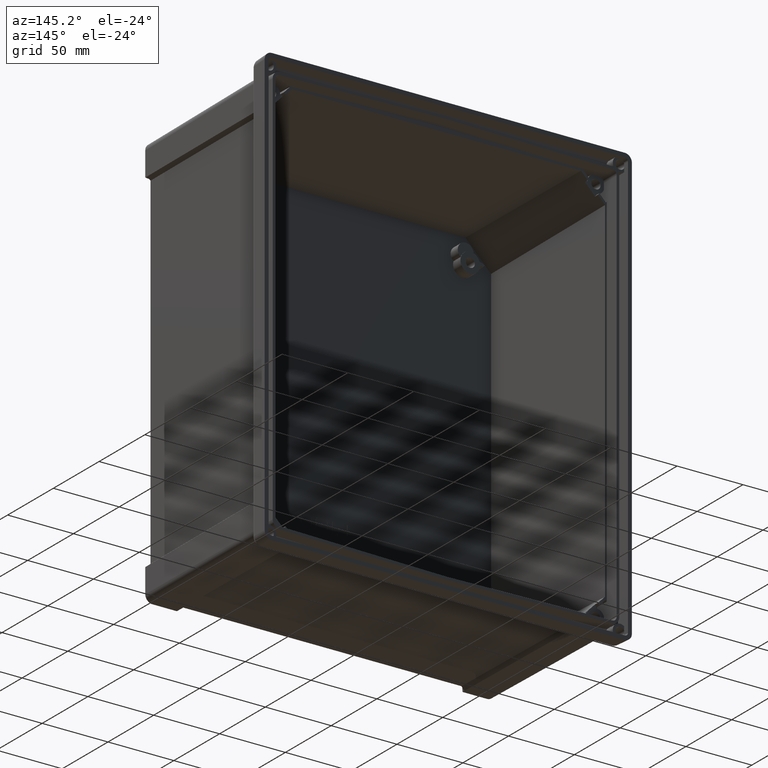
[diagram: clean part render]
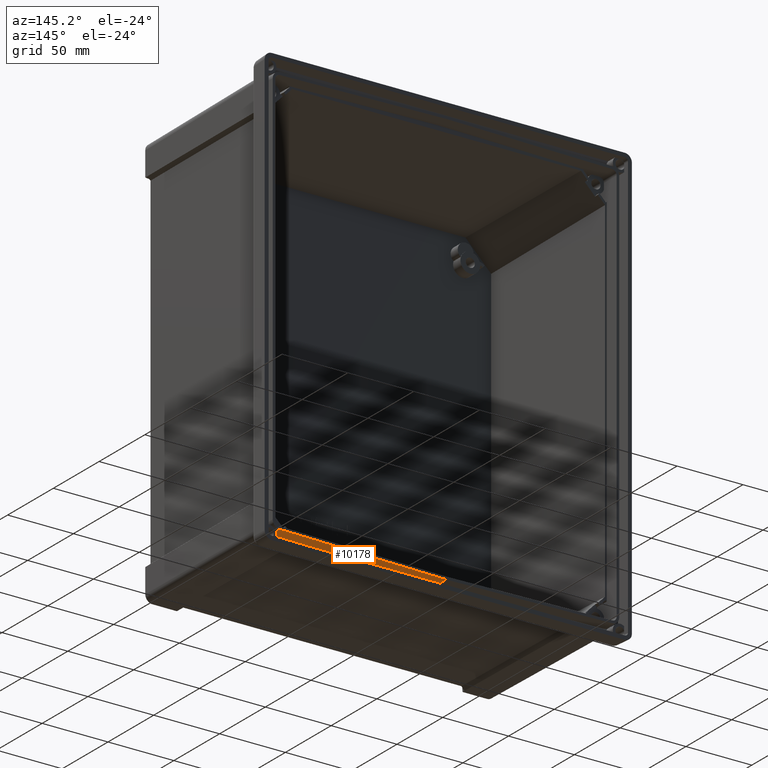
[diagram: same view with one face highlighted and labeled with its STEP entity id]
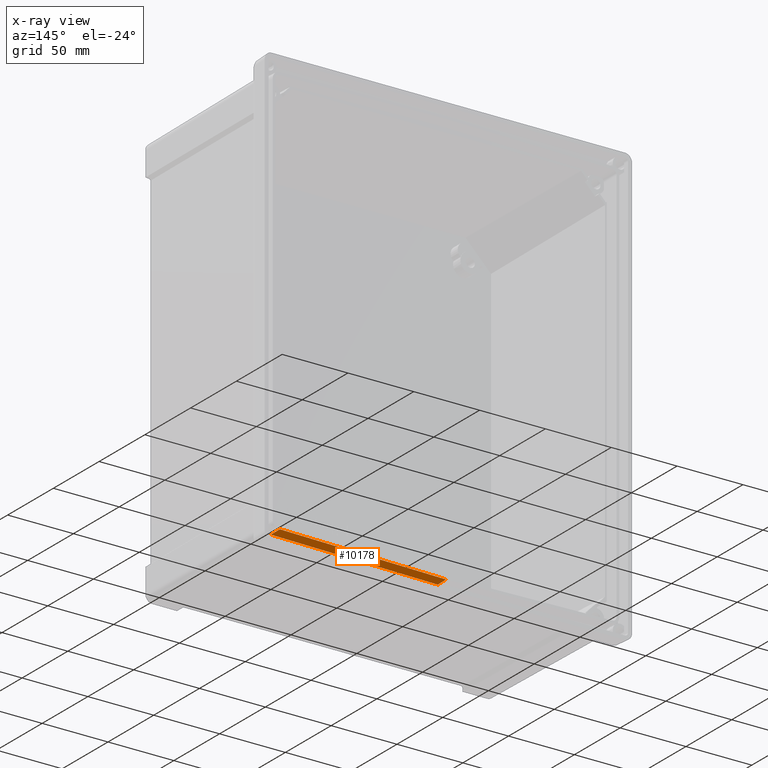
[diagram: x-ray of the same camera — body ghosted, the highlighted face saturated]
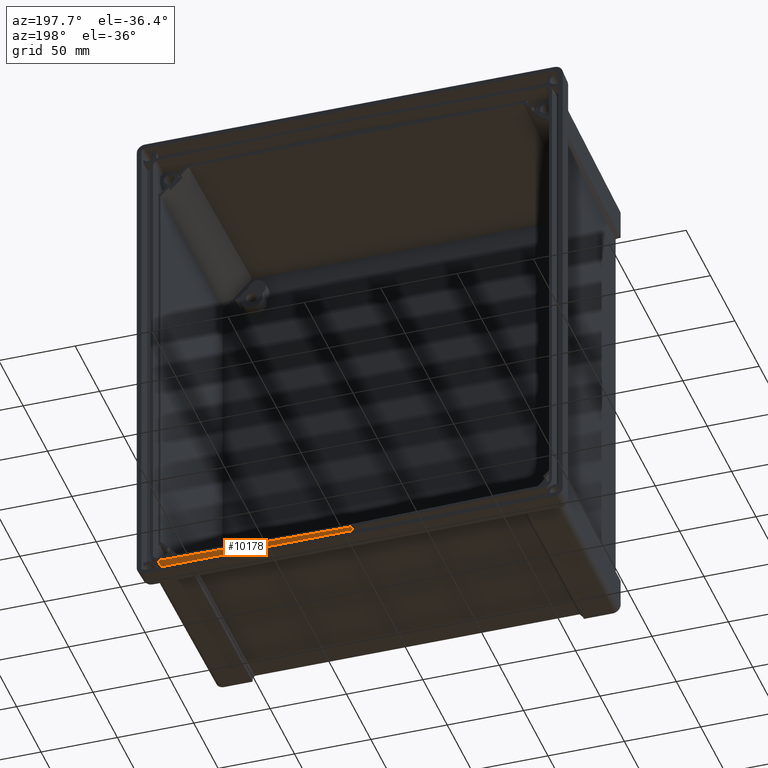
[diagram: same view with one face highlighted and labeled with its STEP entity id]
A machine part, auxiliary view. The second image highlights one B-rep face of the part: STEP entity #10178.
The next image is the same camera in x-ray: the body ghosted, the highlighted face saturated — about 0% of this face is hidden behind the body in this view.
A second angle (auxiliary view) of the same face is appended — the face is thin or edge-on in the first view.
In plain terms, the highlighted planar face has unit normal (-0.0174, -0.0349, 0.9992).
Its self-contained STEP definition (entity closure, byte-faithful):
#571=DIRECTION('',(-9.998476951625E-1,3.806662701986E-11,-1.745240608990E-2));
#572=VECTOR('',#571,1.262303544753E2);
#573=CARTESIAN_POINT('',(1.262111289817E2,-2.500000001561E0,-1.560425061869E2));
#574=LINE('',#573,#572);
#3152=DIRECTION('',(3.487899389160E-2,-9.988036077264E-1,-3.427548654363E-2));
#3153=VECTOR('',#3152,9.390600425283E0);
#3154=CARTESIAN_POINT('',(1.262111289817E2,-2.500000001561E0,
-1.560425061869E2));
#3155=LINE('',#3154,#3153);
#3156=DIRECTION('',(0.E0,-9.993906414874E-1,-3.490480923170E-2));
#3157=VECTOR('',#3156,8.950038494211E0);
#3158=CARTESIAN_POINT('',(0.E0,-2.499999996756E0,-1.582455295940E2));
#3159=LINE('',#3158,#3157);
#3218=DIRECTION('',(-9.998431525077E-1,3.682270335347E-3,-1.732371982716E-2));
#3219=VECTOR('',#3218,1.249351698340E2);
#3220=CARTESIAN_POINT('',(1.249155740659E2,-1.190462977854E1,
-1.563935871015E2));
#3221=LINE('',#3220,#3219);
#3324=CARTESIAN_POINT('',(1.265386636509E2,-1.187936558553E1,
-1.563643735863E2));
#3325=CARTESIAN_POINT('',(1.259978008835E2,-1.189814248395E1,
-1.563744701846E2));
#3326=CARTESIAN_POINT('',(1.254567719889E2,-1.190662292876E1,
-1.563842100679E2));
#3327=CARTESIAN_POINT('',(1.249155741091E2,-1.190462977993E1,
-1.563935870991E2));
#5882=CARTESIAN_POINT('',(0.E0,-1.144458470882E1,-1.585579289803E2));
#5883=VERTEX_POINT('',#5882);
#5884=CARTESIAN_POINT('',(1.249155740659E2,-1.190462977854E1,
-1.563935871015E2));
#5885=VERTEX_POINT('',#5884);
#5890=VERTEX_POINT('',#3324);
#5905=CARTESIAN_POINT('',(1.262111289817E2,-2.500000001561E0,
-1.560425061869E2));
#5906=CARTESIAN_POINT('',(0.E0,-2.499999996756E0,-1.582455295940E2));
#5907=VERTEX_POINT('',#5905);
#5908=VERTEX_POINT('',#5906);
#10163=CARTESIAN_POINT('',(6.326933182559E1,-7.164515011721E0,
-1.573040725911E2));
#10164=DIRECTION('',(-1.744177490356E-2,-3.489949668588E-2,9.992386149561E-1));
#10165=DIRECTION('',(0.E0,9.993906415869E-1,3.490480638151E-2));
#10166=AXIS2_PLACEMENT_3D('',#10163,#10164,#10165);
#10167=PLANE('',#10166);
#10168=ORIENTED_EDGE('',*,*,#6646,.T.);
#10170=ORIENTED_EDGE('',*,*,#10169,.T.);
#10172=ORIENTED_EDGE('',*,*,#10171,.F.);
#10174=ORIENTED_EDGE('',*,*,#10173,.F.);
#10175=ORIENTED_EDGE('',*,*,#10152,.F.);
#10176=EDGE_LOOP('',(#10168,#10170,#10172,#10174,#10175));
#10177=FACE_OUTER_BOUND('',#10176,.F.);
#10178=ADVANCED_FACE('',(#10177),#10167,.F.);
#3328=B_SPLINE_CURVE_WITH_KNOTS('',3,(#3324,#3325,#3326,#3327),.UNSPECIFIED.,
.F.,.F.,(4,4),(0.E0,1.E0),.UNSPECIFIED.);
#6646=EDGE_CURVE('',#5907,#5908,#574,.T.);
#10152=EDGE_CURVE('',#5907,#5890,#3155,.T.);
#10169=EDGE_CURVE('',#5908,#5883,#3159,.T.);
#10171=EDGE_CURVE('',#5885,#5883,#3221,.T.);
#10173=EDGE_CURVE('',#5890,#5885,#3328,.T.);